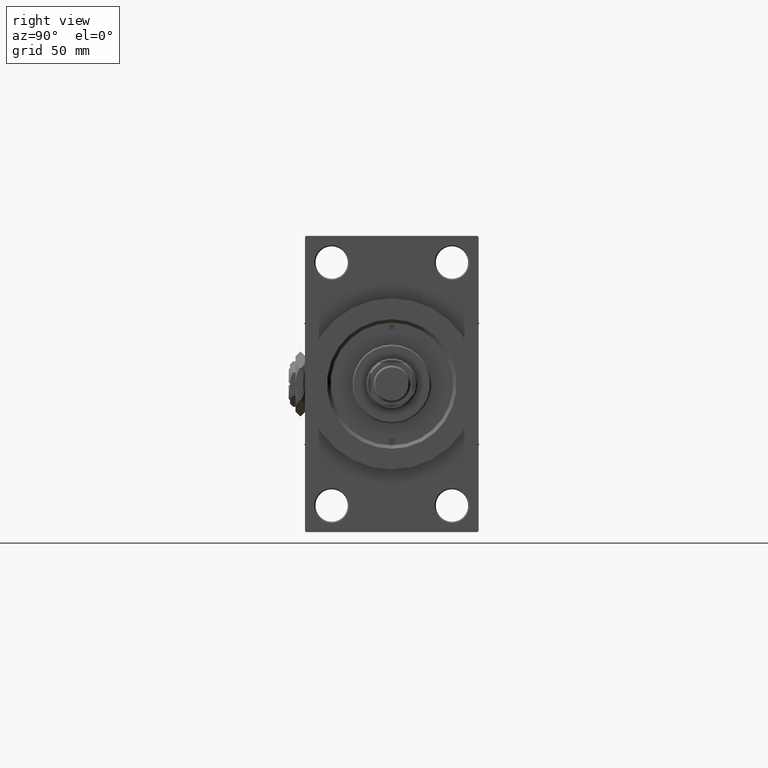
[diagram: clean part render]
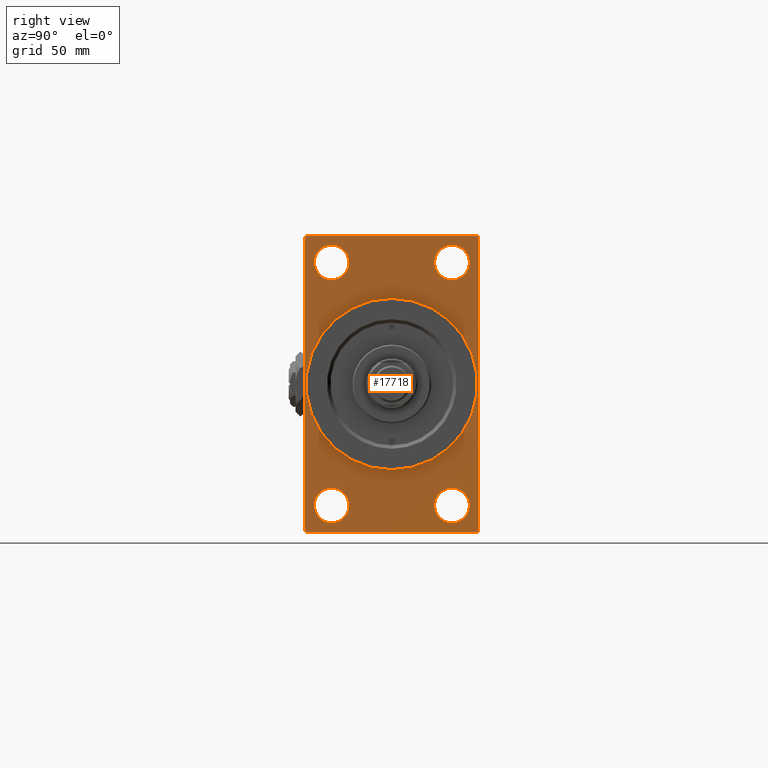
[diagram: same view with one face highlighted and labeled with its STEP entity id]
A machine part, right view. The second image highlights one B-rep face of the part: STEP entity #17718.
In plain terms, the highlighted planar face has unit normal (-1, 0, 0).
Its self-contained STEP definition (entity closure, byte-faithful):
#138 = FACE_BOUND ( 'NONE', #10003, .T. ) ;
#762 = DIRECTION ( 'NONE',  ( 0.000000000000000000, 0.000000000000000000, -1.000000000000000000 ) ) ;
#875 = CARTESIAN_POINT ( 'NONE',  ( 198.0000000000000000, 37.00000000000000000, 63.99999999999998579 ) ) ;
#996 = CARTESIAN_POINT ( 'NONE',  ( 198.0000000000000000, 26.00000000000000000, 45.00000000000001421 ) ) ;
#1211 = EDGE_CURVE ( 'NONE', #10359, #16558, #12255, .T. ) ;
#1364 = DIRECTION ( 'NONE',  ( 0.000000000000000000, 0.000000000000000000, 1.000000000000000000 ) ) ;
#1389 = DIRECTION ( 'NONE',  ( -1.000000000000000000, 0.000000000000000000, -0.000000000000000000 ) ) ;
#1772 = DIRECTION ( 'NONE',  ( -1.000000000000000000, 0.000000000000000000, -0.000000000000000000 ) ) ;
#1860 = EDGE_CURVE ( 'NONE', #24494, #40112, #12129, .T. ) ;
#1969 = ORIENTED_EDGE ( 'NONE', *, *, #6858, .F. ) ;
#2742 = AXIS2_PLACEMENT_3D ( 'NONE', #19317, #16791, #8958 ) ;
#3196 = EDGE_LOOP ( 'NONE', ( #37792, #11663, #30099, #4037, #1969, #44467, #23267, #19647 ) ) ;
#4037 = ORIENTED_EDGE ( 'NONE', *, *, #28537, .T. ) ;
#4184 = AXIS2_PLACEMENT_3D ( 'NONE', #21263, #9138, #47037 ) ;
#4190 = VERTEX_POINT ( 'NONE', #6514 ) ;
#4507 = AXIS2_PLACEMENT_3D ( 'NONE', #4906, #1389, #8960 ) ;
#4746 = DIRECTION ( 'NONE',  ( -1.000000000000000000, 0.000000000000000000, -0.000000000000000000 ) ) ;
#4906 = CARTESIAN_POINT ( 'NONE',  ( 198.0000000000000000, 26.00000000000000000, -52.49999999999999289 ) ) ;
#5843 = CARTESIAN_POINT ( 'NONE',  ( 198.0000000000000000, 37.00000000000002132, -64.00000000000000000 ) ) ;
#6409 = LINE ( 'NONE', #25859, #12194 ) ;
#6437 = EDGE_CURVE ( 'NONE', #37668, #46229, #19518, .T. ) ;
#6514 = CARTESIAN_POINT ( 'NONE',  ( 198.0000000000000000, 37.50000000000000000, 63.49999999999998579 ) ) ;
#6858 = EDGE_CURVE ( 'NONE', #4190, #19597, #30513, .T. ) ;
#7112 = LINE ( 'NONE', #19221, #16815 ) ;
#7382 = CARTESIAN_POINT ( 'NONE',  ( 198.0000000000000000, -25.99999999999999645, -59.99999999999997158 ) ) ;
#7409 = LINE ( 'NONE', #7658, #8977 ) ;
#7658 = CARTESIAN_POINT ( 'NONE',  ( 198.0000000000000000, -37.49999999999999289, 63.99999999999997158 ) ) ;
#7713 = FACE_OUTER_BOUND ( 'NONE', #3196, .T. ) ;
#7770 = AXIS2_PLACEMENT_3D ( 'NONE', #28309, #35392, #20489 ) ;
#7884 = ORIENTED_EDGE ( 'NONE', *, *, #30840, .T. ) ;
#8958 = DIRECTION ( 'NONE',  ( -0.000000000000000000, 0.000000000000000000, 1.000000000000000000 ) ) ;
#8960 = DIRECTION ( 'NONE',  ( 0.000000000000000000, 0.000000000000000000, 1.000000000000000000 ) ) ;
#8977 = VECTOR ( 'NONE', #49368, 1000.000000000000000 ) ;
#9138 = DIRECTION ( 'NONE',  ( -1.000000000000000000, 0.000000000000000000, -0.000000000000000000 ) ) ;
#9142 = EDGE_CURVE ( 'NONE', #4190, #15450, #32189, .T. ) ;
#9181 = EDGE_CURVE ( 'NONE', #39404, #16558, #40258, .T. ) ;
#9542 = EDGE_LOOP ( 'NONE', ( #7884, #18419 ) ) ;
#9696 = CARTESIAN_POINT ( 'NONE',  ( 198.0000000000000000, 26.00000000000000000, 52.49999999999999289 ) ) ;
#9707 = CARTESIAN_POINT ( 'NONE',  ( 198.0000000000000000, 37.49999999999999289, -64.00000000000000000 ) ) ;
#10003 = EDGE_LOOP ( 'NONE', ( #31530, #48985 ) ) ;
#10359 = VERTEX_POINT ( 'NONE', #33049 ) ;
#11663 = ORIENTED_EDGE ( 'NONE', *, *, #1211, .T. ) ;
#12129 = CIRCLE ( 'NONE', #41984, 7.499999999999978684 ) ;
#12194 = VECTOR ( 'NONE', #41512, 1000.000000000000000 ) ;
#12255 = LINE ( 'NONE', #47362, #21765 ) ;
#12505 = FACE_BOUND ( 'NONE', #15190, .T. ) ;
#12948 = AXIS2_PLACEMENT_3D ( 'NONE', #9696, #28383, #1364 ) ;
#13079 = VERTEX_POINT ( 'NONE', #23867 ) ;
#13752 = VECTOR ( 'NONE', #24101, 1000.000000000000000 ) ;
#13902 = DIRECTION ( 'NONE',  ( 0.000000000000000000, 0.000000000000000000, 1.000000000000000000 ) ) ;
#14039 = DIRECTION ( 'NONE',  ( 0.000000000000000000, 0.000000000000000000, 1.000000000000000000 ) ) ;
#14166 = CARTESIAN_POINT ( 'NONE',  ( 198.0000000000000000, 26.00000000000000000, -59.99999999999997158 ) ) ;
#14896 = ORIENTED_EDGE ( 'NONE', *, *, #1860, .T. ) ;
#15190 = EDGE_LOOP ( 'NONE', ( #14896, #37500 ) ) ;
#15450 = VERTEX_POINT ( 'NONE', #19038 ) ;
#16550 = DIRECTION ( 'NONE',  ( 0.000000000000000000, 0.7071067811865573427, -0.7071067811865378028 ) ) ;
#16558 = VERTEX_POINT ( 'NONE', #19371 ) ;
#16678 = CARTESIAN_POINT ( 'NONE',  ( 198.0000000000000000, -25.99999999999999645, 52.50000000000000000 ) ) ;
#16791 = DIRECTION ( 'NONE',  ( -1.000000000000000000, 0.000000000000000000, -0.000000000000000000 ) ) ;
#16815 = VECTOR ( 'NONE', #18979, 1000.000000000000000 ) ;
#17718 = ADVANCED_FACE ( 'NONE', ( #31705, #26913, #47109, #12505, #138, #7713 ), #27907, .F. ) ;
#18419 = ORIENTED_EDGE ( 'NONE', *, *, #6437, .T. ) ;
#18979 = DIRECTION ( 'NONE',  ( 0.000000000000000000, -1.000000000000000000, -1.850371707708594563E-16 ) ) ;
#19038 = CARTESIAN_POINT ( 'NONE',  ( 198.0000000000000000, 37.00000000000000000, 63.99999999999998579 ) ) ;
#19221 = CARTESIAN_POINT ( 'NONE',  ( 198.0000000000000000, 37.50000000000000000, 63.99999999999998579 ) ) ;
#19317 = CARTESIAN_POINT ( 'NONE',  ( 198.0000000000000000, 0.000000000000000000, 0.000000000000000000 ) ) ;
#19333 = VERTEX_POINT ( 'NONE', #7382 ) ;
#19371 = CARTESIAN_POINT ( 'NONE',  ( 198.0000000000000000, -36.99999999999999289, -64.00000000000001421 ) ) ;
#19518 = CIRCLE ( 'NONE', #4184, 7.499999999999978684 ) ;
#19597 = VERTEX_POINT ( 'NONE', #34601 ) ;
#19647 = ORIENTED_EDGE ( 'NONE', *, *, #39249, .T. ) ;
#20146 = ORIENTED_EDGE ( 'NONE', *, *, #36944, .T. ) ;
#20489 = DIRECTION ( 'NONE',  ( 0.000000000000000000, 0.000000000000000000, 1.000000000000000000 ) ) ;
#20616 = ORIENTED_EDGE ( 'NONE', *, *, #25781, .T. ) ;
#20677 = CARTESIAN_POINT ( 'NONE',  ( 198.0000000000000000, 4.531193156845206793E-15, -37.00000000000000000 ) ) ;
#20879 = CARTESIAN_POINT ( 'NONE',  ( 198.0000000000000000, 0.000000000000000000, 37.00000000000000000 ) ) ;
#21263 = CARTESIAN_POINT ( 'NONE',  ( 198.0000000000000000, -25.99999999999999645, 52.50000000000000000 ) ) ;
#21765 = VECTOR ( 'NONE', #16550, 1000.000000000000000 ) ;
#22440 = CIRCLE ( 'NONE', #40172, 7.499999999999978684 ) ;
#22609 = CIRCLE ( 'NONE', #12948, 7.499999999999978684 ) ;
#23267 = ORIENTED_EDGE ( 'NONE', *, *, #31531, .T. ) ;
#23652 = EDGE_CURVE ( 'NONE', #32874, #24656, #31067, .T. ) ;
#23817 = AXIS2_PLACEMENT_3D ( 'NONE', #29491, #49182, #41090 ) ;
#23867 = CARTESIAN_POINT ( 'NONE',  ( 198.0000000000000000, -25.99999999999999645, -45.00000000000001421 ) ) ;
#24101 = DIRECTION ( 'NONE',  ( 0.000000000000000000, -1.000000000000000000, -1.850371707708594563E-16 ) ) ;
#24225 = AXIS2_PLACEMENT_3D ( 'NONE', #27527, #39147, #762 ) ;
#24382 = CARTESIAN_POINT ( 'NONE',  ( 198.0000000000000000, -25.99999999999999645, -52.49999999999999289 ) ) ;
#24494 = VERTEX_POINT ( 'NONE', #996 ) ;
#24563 = CARTESIAN_POINT ( 'NONE',  ( 198.0000000000000000, 26.00000000000000000, 52.49999999999999289 ) ) ;
#24656 = VERTEX_POINT ( 'NONE', #20879 ) ;
#25694 = AXIS2_PLACEMENT_3D ( 'NONE', #24382, #37007, #14039 ) ;
#25781 = EDGE_CURVE ( 'NONE', #32657, #31502, #26313, .T. ) ;
#25859 = CARTESIAN_POINT ( 'NONE',  ( 198.0000000000000000, -37.49999999999999289, 63.50000000000000000 ) ) ;
#25975 = VERTEX_POINT ( 'NONE', #47048 ) ;
#26313 = CIRCLE ( 'NONE', #4507, 7.499999999999978684 ) ;
#26325 = CARTESIAN_POINT ( 'NONE',  ( 198.0000000000000000, 26.00000000000000000, -45.00000000000001421 ) ) ;
#26822 = EDGE_CURVE ( 'NONE', #31502, #32657, #45708, .T. ) ;
#26913 = FACE_BOUND ( 'NONE', #40056, .T. ) ;
#27527 = CARTESIAN_POINT ( 'NONE',  ( 198.0000000000000000, 0.000000000000000000, 0.000000000000000000 ) ) ;
#27907 = PLANE ( 'NONE',  #2742 ) ;
#28309 = CARTESIAN_POINT ( 'NONE',  ( 198.0000000000000000, 26.00000000000000000, -52.49999999999999289 ) ) ;
#28383 = DIRECTION ( 'NONE',  ( -1.000000000000000000, 0.000000000000000000, -0.000000000000000000 ) ) ;
#28537 = EDGE_CURVE ( 'NONE', #39404, #19597, #34197, .T. ) ;
#28834 = VECTOR ( 'NONE', #37474, 1000.000000000000114 ) ;
#29491 = CARTESIAN_POINT ( 'NONE',  ( 198.0000000000000000, 0.000000000000000000, 0.000000000000000000 ) ) ;
#30099 = ORIENTED_EDGE ( 'NONE', *, *, #9181, .F. ) ;
#30210 = CARTESIAN_POINT ( 'NONE',  ( 198.0000000000000000, 26.00000000000000000, 59.99999999999997158 ) ) ;
#30513 = LINE ( 'NONE', #37835, #42958 ) ;
#30840 = EDGE_CURVE ( 'NONE', #46229, #37668, #22440, .T. ) ;
#31067 = CIRCLE ( 'NONE', #23817, 37.00000000000000000 ) ;
#31502 = VERTEX_POINT ( 'NONE', #26325 ) ;
#31529 = VERTEX_POINT ( 'NONE', #37677 ) ;
#31530 = ORIENTED_EDGE ( 'NONE', *, *, #40513, .F. ) ;
#31531 = EDGE_CURVE ( 'NONE', #15450, #31529, #7112, .T. ) ;
#31659 = DIRECTION ( 'NONE',  ( -1.000000000000000000, 0.000000000000000000, -0.000000000000000000 ) ) ;
#31705 = FACE_BOUND ( 'NONE', #9542, .T. ) ;
#32189 = LINE ( 'NONE', #875, #32299 ) ;
#32271 = AXIS2_PLACEMENT_3D ( 'NONE', #35831, #4746, #43657 ) ;
#32299 = VECTOR ( 'NONE', #47346, 1000.000000000000114 ) ;
#32657 = VERTEX_POINT ( 'NONE', #14166 ) ;
#32874 = VERTEX_POINT ( 'NONE', #20677 ) ;
#33049 = CARTESIAN_POINT ( 'NONE',  ( 198.0000000000000000, -37.49999999999999289, -63.50000000000002842 ) ) ;
#34197 = LINE ( 'NONE', #37222, #28834 ) ;
#34601 = CARTESIAN_POINT ( 'NONE',  ( 198.0000000000000000, 37.49999999999999289, -63.50000000000001421 ) ) ;
#34976 = EDGE_CURVE ( 'NONE', #19333, #13079, #41828, .T. ) ;
#35350 = CARTESIAN_POINT ( 'NONE',  ( 198.0000000000000000, -25.99999999999999645, 45.00000000000002132 ) ) ;
#35392 = DIRECTION ( 'NONE',  ( -1.000000000000000000, 0.000000000000000000, -0.000000000000000000 ) ) ;
#35831 = CARTESIAN_POINT ( 'NONE',  ( 198.0000000000000000, -25.99999999999999645, -52.49999999999999289 ) ) ;
#36085 = CARTESIAN_POINT ( 'NONE',  ( 198.0000000000000000, -25.99999999999999645, 59.99999999999997868 ) ) ;
#36944 = EDGE_CURVE ( 'NONE', #13079, #19333, #49205, .T. ) ;
#37007 = DIRECTION ( 'NONE',  ( -1.000000000000000000, 0.000000000000000000, -0.000000000000000000 ) ) ;
#37222 = CARTESIAN_POINT ( 'NONE',  ( 198.0000000000000000, 37.49999999999999289, -63.50000000000001421 ) ) ;
#37474 = DIRECTION ( 'NONE',  ( -0.000000000000000000, 0.7071067811865376918, 0.7071067811865573427 ) ) ;
#37500 = ORIENTED_EDGE ( 'NONE', *, *, #38087, .T. ) ;
#37668 = VERTEX_POINT ( 'NONE', #36085 ) ;
#37677 = CARTESIAN_POINT ( 'NONE',  ( 198.0000000000000000, -37.00000000000001421, 63.99999999999997158 ) ) ;
#37792 = ORIENTED_EDGE ( 'NONE', *, *, #42101, .T. ) ;
#37835 = CARTESIAN_POINT ( 'NONE',  ( 198.0000000000000000, 37.50000000000000000, 63.99999999999998579 ) ) ;
#37923 = CIRCLE ( 'NONE', #24225, 37.00000000000000000 ) ;
#38087 = EDGE_CURVE ( 'NONE', #40112, #24494, #22609, .T. ) ;
#39147 = DIRECTION ( 'NONE',  ( 1.000000000000000000, 0.000000000000000000, 0.000000000000000000 ) ) ;
#39249 = EDGE_CURVE ( 'NONE', #31529, #25975, #6409, .T. ) ;
#39404 = VERTEX_POINT ( 'NONE', #5843 ) ;
#39526 = EDGE_LOOP ( 'NONE', ( #20616, #40598 ) ) ;
#40056 = EDGE_LOOP ( 'NONE', ( #44862, #20146 ) ) ;
#40112 = VERTEX_POINT ( 'NONE', #30210 ) ;
#40172 = AXIS2_PLACEMENT_3D ( 'NONE', #16678, #1772, #13902 ) ;
#40258 = LINE ( 'NONE', #9707, #13752 ) ;
#40513 = EDGE_CURVE ( 'NONE', #24656, #32874, #37923, .T. ) ;
#40598 = ORIENTED_EDGE ( 'NONE', *, *, #26822, .T. ) ;
#41090 = DIRECTION ( 'NONE',  ( 0.000000000000000000, 0.000000000000000000, -1.000000000000000000 ) ) ;
#41512 = DIRECTION ( 'NONE',  ( -0.000000000000000000, -0.7071067811865524577, -0.7071067811865426878 ) ) ;
#41828 = CIRCLE ( 'NONE', #25694, 7.499999999999978684 ) ;
#41984 = AXIS2_PLACEMENT_3D ( 'NONE', #24563, #31659, #47063 ) ;
#42101 = EDGE_CURVE ( 'NONE', #25975, #10359, #7409, .T. ) ;
#42958 = VECTOR ( 'NONE', #45924, 1000.000000000000000 ) ;
#43657 = DIRECTION ( 'NONE',  ( 0.000000000000000000, 0.000000000000000000, 1.000000000000000000 ) ) ;
#44467 = ORIENTED_EDGE ( 'NONE', *, *, #9142, .T. ) ;
#44862 = ORIENTED_EDGE ( 'NONE', *, *, #34976, .T. ) ;
#45708 = CIRCLE ( 'NONE', #7770, 7.499999999999978684 ) ;
#45924 = DIRECTION ( 'NONE',  ( 0.000000000000000000, -5.421010862427522170E-17, -1.000000000000000000 ) ) ;
#46229 = VERTEX_POINT ( 'NONE', #35350 ) ;
#47037 = DIRECTION ( 'NONE',  ( 0.000000000000000000, 0.000000000000000000, 1.000000000000000000 ) ) ;
#47048 = CARTESIAN_POINT ( 'NONE',  ( 198.0000000000000000, -37.49999999999999289, 63.50000000000000000 ) ) ;
#47063 = DIRECTION ( 'NONE',  ( 0.000000000000000000, 0.000000000000000000, 1.000000000000000000 ) ) ;
#47109 = FACE_BOUND ( 'NONE', #39526, .T. ) ;
#47346 = DIRECTION ( 'NONE',  ( 0.000000000000000000, -0.7071067811865474617, 0.7071067811865474617 ) ) ;
#47362 = CARTESIAN_POINT ( 'NONE',  ( 198.0000000000000000, -36.99999999999999289, -64.00000000000001421 ) ) ;
#48985 = ORIENTED_EDGE ( 'NONE', *, *, #23652, .F. ) ;
#49182 = DIRECTION ( 'NONE',  ( 1.000000000000000000, 0.000000000000000000, 0.000000000000000000 ) ) ;
#49205 = CIRCLE ( 'NONE', #32271, 7.499999999999978684 ) ;
#49368 = DIRECTION ( 'NONE',  ( 0.000000000000000000, 0.000000000000000000, -1.000000000000000000 ) ) ;